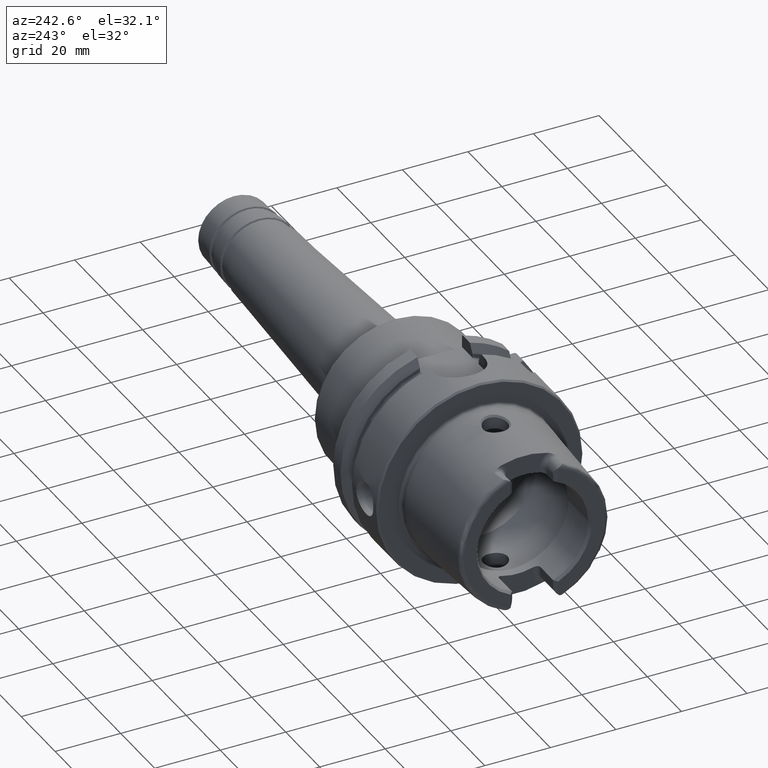
[diagram: clean part render]
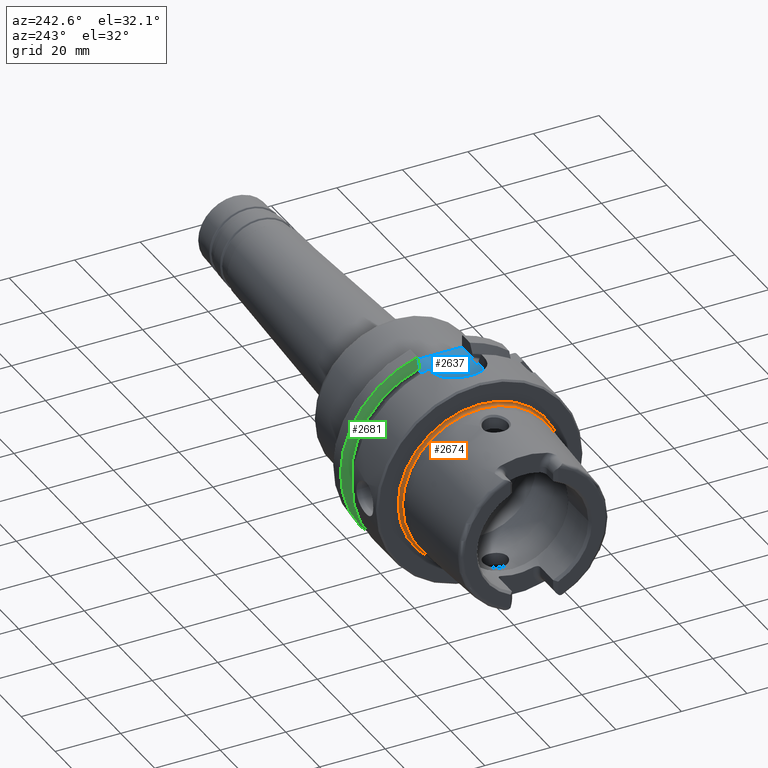
[diagram: same view with three faces highlighted in distinct colors, each labeled with its STEP entity id]
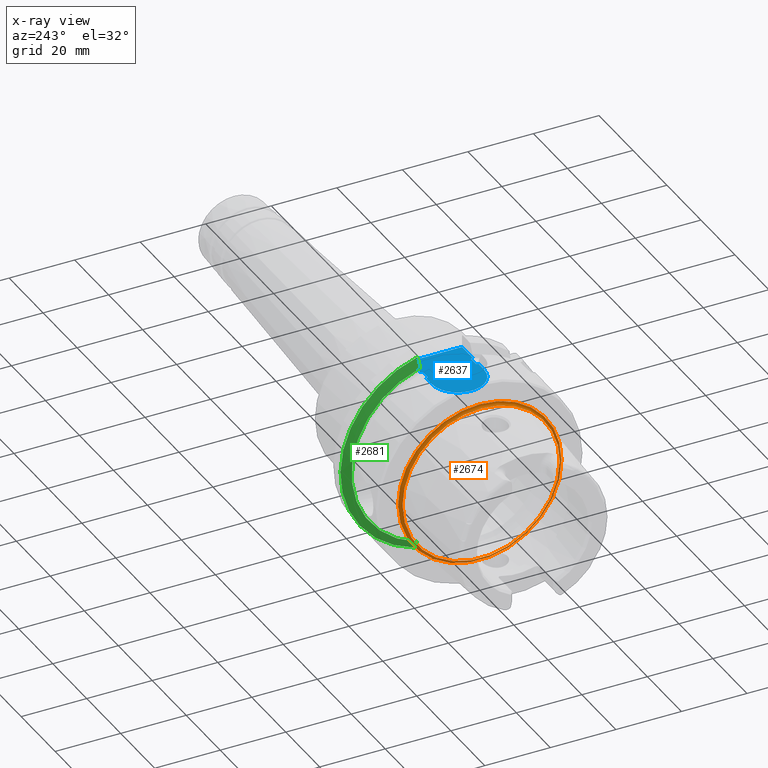
[diagram: x-ray of the same camera — body ghosted, the three highlighted faces saturated]
A machine part, auxiliary view with three faces highlighted in distinct colors.
The next image is the same camera in x-ray (body ghosted, the three faces saturated) — at least one of them is partly hidden behind the body in this view.
Their STEP definitions:

[orange] entity #2674 — the highlighted toroidal blend (fillet) surface has major radius 24.8204 mm and minor (blend) radius 0.8 mm.
#568=FACE_OUTER_BOUND('',#714,.T.);
#714=EDGE_LOOP('',(#2463,#2464,#2465,#2466,#2467,#2468,#2469,#2470));
#935=CIRCLE('',#3046,24.0204308617234);
#936=CIRCLE('',#3047,24.0204308617234);
#937=CIRCLE('',#3048,24.0204308617234);
#938=CIRCLE('',#3050,0.8);
#939=CIRCLE('',#3051,24.9317693424915);
#940=CIRCLE('',#3052,24.9317693424915);
#941=CIRCLE('',#3053,24.9317693424915);
#1235=VERTEX_POINT('',#5562);
#1236=VERTEX_POINT('',#5563);
#1237=VERTEX_POINT('',#5565);
#1238=VERTEX_POINT('',#5570);
#1239=VERTEX_POINT('',#5572);
#1240=VERTEX_POINT('',#5574);
#1649=EDGE_CURVE('',#1235,#1236,#935,.T.);
#1650=EDGE_CURVE('',#1237,#1235,#936,.T.);
#1652=EDGE_CURVE('',#1236,#1237,#937,.T.);
#1653=EDGE_CURVE('',#1236,#1238,#938,.T.);
#1654=EDGE_CURVE('',#1239,#1238,#939,.T.);
#1655=EDGE_CURVE('',#1240,#1239,#940,.T.);
#1656=EDGE_CURVE('',#1238,#1240,#941,.T.);
#2463=ORIENTED_EDGE('',*,*,#1649,.T.);
#2464=ORIENTED_EDGE('',*,*,#1653,.T.);
#2465=ORIENTED_EDGE('',*,*,#1654,.F.);
#2466=ORIENTED_EDGE('',*,*,#1655,.F.);
#2467=ORIENTED_EDGE('',*,*,#1656,.F.);
#2468=ORIENTED_EDGE('',*,*,#1653,.F.);
#2469=ORIENTED_EDGE('',*,*,#1652,.T.);
#2470=ORIENTED_EDGE('',*,*,#1650,.T.);
#2545=TOROIDAL_SURFACE('',#3049,24.8204308617234,0.8);
#2674=ADVANCED_FACE('',(#568),#2545,.F.);
#3046=AXIS2_PLACEMENT_3D('',#5564,#3872,#3873);
#3047=AXIS2_PLACEMENT_3D('',#5566,#3874,#3875);
#3048=AXIS2_PLACEMENT_3D('',#5568,#3877,#3878);
#3049=AXIS2_PLACEMENT_3D('',#5569,#3879,#3880);
#3050=AXIS2_PLACEMENT_3D('',#5571,#3881,#3882);
#3051=AXIS2_PLACEMENT_3D('',#5573,#3883,#3884);
#3052=AXIS2_PLACEMENT_3D('',#5575,#3885,#3886);
#3053=AXIS2_PLACEMENT_3D('',#5576,#3887,#3888);
#3872=DIRECTION('center_axis',(1.,0.,0.));
#3873=DIRECTION('ref_axis',(0.,0.,-1.));
#3874=DIRECTION('center_axis',(1.,0.,0.));
#3875=DIRECTION('ref_axis',(0.,0.,-1.));
#3877=DIRECTION('center_axis',(1.,0.,0.));
#3878=DIRECTION('ref_axis',(0.,0.,-1.));
#3879=DIRECTION('center_axis',(1.,0.,0.));
#3880=DIRECTION('ref_axis',(0.,0.,-1.));
#3881=DIRECTION('center_axis',(0.,-1.,-1.22464679914735E-16));
#3882=DIRECTION('ref_axis',(0.,-1.22464679914735E-16,1.));
#3883=DIRECTION('center_axis',(1.,0.,0.));
#3884=DIRECTION('ref_axis',(0.,0.,-1.));
#3885=DIRECTION('center_axis',(1.,0.,0.));
#3886=DIRECTION('ref_axis',(0.,0.,-1.));
#3887=DIRECTION('center_axis',(1.,0.,0.));
#3888=DIRECTION('ref_axis',(0.,0.,-1.));
#5562=CARTESIAN_POINT('',(-0.7,24.0204308617234,0.));
#5563=CARTESIAN_POINT('',(-0.699999999999998,-2.94165437689499E-15,24.0204308617234));
#5564=CARTESIAN_POINT('Origin',(-0.699999999999998,0.,0.));
#5565=CARTESIAN_POINT('',(-0.699999999999998,-24.0204308617234,-2.94165437689499E-15));
#5566=CARTESIAN_POINT('Origin',(-0.699999999999998,0.,0.));
#5568=CARTESIAN_POINT('Origin',(-0.699999999999998,0.,0.));
#5569=CARTESIAN_POINT('Origin',(-0.699999999999998,0.,0.));
#5570=CARTESIAN_POINT('',(0.0922144549932558,-3.05326115223623E-15,24.9317693424915));
#5571=CARTESIAN_POINT('Origin',(-0.699999999999998,-3.03962612082678E-15,
24.8204308617234));
#5572=CARTESIAN_POINT('',(0.0922144549932569,24.9317693424915,0.));
#5573=CARTESIAN_POINT('Origin',(0.0922144549932558,0.,0.));
#5574=CARTESIAN_POINT('',(0.0922144549932574,-24.9317693424915,-3.05326115223623E-15));
#5575=CARTESIAN_POINT('Origin',(0.0922144549932558,0.,0.));
#5576=CARTESIAN_POINT('Origin',(0.0922144549932558,0.,0.));

[blue] entity #2637 — the highlighted planar face has unit normal (0, 0, 1).
#75=B_SPLINE_CURVE_WITH_KNOTS('',3,(#5265,#5266,#5267,#5268,#5269,#5270,
#5271,#5272,#5273,#5274),.UNSPECIFIED.,.F.,.F.,(4,2,2,2,4),(0.328785692776271,
0.334026201575553,0.340879824321645,0.368343350403883,0.404857107979834),
 .UNSPECIFIED.);
#78=B_SPLINE_CURVE_WITH_KNOTS('',3,(#5296,#5297,#5298,#5299,#5300,#5301,
#5302,#5303,#5304,#5305),.UNSPECIFIED.,.F.,.F.,(4,2,2,2,4),(0.252714277572707,
0.289228035148658,0.316691561230897,0.323545183976988,0.32878569277627),
 .UNSPECIFIED.);
#82=B_SPLINE_CURVE_WITH_KNOTS('',3,(#5355,#5356,#5357,#5358,#5359,#5360,
#5361,#5362,#5363,#5364),.UNSPECIFIED.,.F.,.F.,(4,2,2,2,4),(0.32878569277627,
0.334026201575552,0.340879824321644,0.368343350403882,0.404857107979833),
 .UNSPECIFIED.);
#83=B_SPLINE_CURVE_WITH_KNOTS('',3,(#5367,#5368,#5369,#5370,#5371,#5372,
#5373,#5374,#5375,#5376),.UNSPECIFIED.,.F.,.F.,(4,2,2,2,4),(0.252714277572707,
0.289228035148658,0.316691561230897,0.323545183976989,0.328785692776271),
 .UNSPECIFIED.);
#162=PLANE('',#2963);
#180=LINE('',#3965,#297);
#262=LINE('',#5287,#379);
#263=LINE('',#5307,#380);
#264=LINE('',#5310,#381);
#269=LINE('',#5343,#386);
#270=LINE('',#5346,#387);
#271=LINE('',#5366,#388);
#297=VECTOR('',#3108,10.);
#379=VECTOR('',#3666,10.);
#380=VECTOR('',#3671,10.);
#381=VECTOR('',#3674,10.);
#386=VECTOR('',#3685,10.);
#387=VECTOR('',#3688,10.);
#388=VECTOR('',#3691,10.);
#531=FACE_OUTER_BOUND('',#674,.T.);
#674=EDGE_LOOP('',(#2259,#2260,#2261,#2262,#2263,#2264,#2265,#2266,#2267,
#2268,#2269,#2270));
#888=CIRCLE('',#2960,8.);
#966=VERTEX_POINT('',#3962);
#967=VERTEX_POINT('',#3964);
#1186=VERTEX_POINT('',#5262);
#1187=VERTEX_POINT('',#5264);
#1188=VERTEX_POINT('',#5285);
#1189=VERTEX_POINT('',#5289);
#1190=VERTEX_POINT('',#5309);
#1191=VERTEX_POINT('',#5313);
#1196=VERTEX_POINT('',#5336);
#1197=VERTEX_POINT('',#5345);
#1198=VERTEX_POINT('',#5354);
#1199=VERTEX_POINT('',#5365);
#1262=EDGE_CURVE('',#966,#967,#180,.T.);
#1559=EDGE_CURVE('',#1186,#1187,#75,.T.);
#1563=EDGE_CURVE('',#1188,#1186,#262,.T.);
#1565=EDGE_CURVE('',#1189,#1188,#78,.T.);
#1566=EDGE_CURVE('',#1189,#967,#263,.T.);
#1567=EDGE_CURVE('',#1190,#1187,#264,.T.);
#1569=EDGE_CURVE('',#1191,#1190,#888,.T.);
#1576=EDGE_CURVE('',#966,#1196,#269,.T.);
#1577=EDGE_CURVE('',#1197,#1191,#270,.T.);
#1579=EDGE_CURVE('',#1198,#1196,#82,.T.);
#1580=EDGE_CURVE('',#1199,#1198,#271,.T.);
#1581=EDGE_CURVE('',#1197,#1199,#83,.T.);
#2259=ORIENTED_EDGE('',*,*,#1559,.F.);
#2260=ORIENTED_EDGE('',*,*,#1563,.F.);
#2261=ORIENTED_EDGE('',*,*,#1565,.F.);
#2262=ORIENTED_EDGE('',*,*,#1566,.T.);
#2263=ORIENTED_EDGE('',*,*,#1262,.F.);
#2264=ORIENTED_EDGE('',*,*,#1576,.T.);
#2265=ORIENTED_EDGE('',*,*,#1579,.F.);
#2266=ORIENTED_EDGE('',*,*,#1580,.F.);
#2267=ORIENTED_EDGE('',*,*,#1581,.F.);
#2268=ORIENTED_EDGE('',*,*,#1577,.T.);
#2269=ORIENTED_EDGE('',*,*,#1569,.T.);
#2270=ORIENTED_EDGE('',*,*,#1567,.T.);
#2637=ADVANCED_FACE('',(#531),#162,.T.);
#2960=AXIS2_PLACEMENT_3D('',#5314,#3678,#3679);
#2963=AXIS2_PLACEMENT_3D('',#5353,#3689,#3690);
#3108=DIRECTION('',(0.,-1.,0.));
#3666=DIRECTION('',(-1.,0.,0.));
#3671=DIRECTION('',(1.,3.41607084500048E-16,0.));
#3674=DIRECTION('',(1.,3.41607084500048E-16,0.));
#3678=DIRECTION('center_axis',(0.,0.,1.));
#3679=DIRECTION('ref_axis',(0.,1.,0.));
#3685=DIRECTION('',(-1.,-2.56205313375036E-16,0.));
#3688=DIRECTION('',(-1.,-2.56205313375036E-16,0.));
#3689=DIRECTION('center_axis',(0.,0.,1.));
#3690=DIRECTION('ref_axis',(1.,0.,0.));
#3691=DIRECTION('',(1.,0.,0.));
#3962=CARTESIAN_POINT('',(26.,8.,26.5));
#3964=CARTESIAN_POINT('',(26.,-8.,26.5));
#3965=CARTESIAN_POINT('',(26.,5.55111512312578E-16,26.5));
#5262=CARTESIAN_POINT('',(16.625,-7.34846922834952,26.5));
#5264=CARTESIAN_POINT('',(16.2397987608563,-8.,26.5));
#5265=CARTESIAN_POINT('Ctrl Pts',(16.625,-7.34846922834952,26.5));
#5266=CARTESIAN_POINT('Ctrl Pts',(16.6075316373357,-7.34846922834952,26.5));
#5267=CARTESIAN_POINT('Ctrl Pts',(16.587038394856,-7.35287762173868,26.5));
#5268=CARTESIAN_POINT('Ctrl Pts',(16.5496994821687,-7.36807649661538,26.5));
#5269=CARTESIAN_POINT('Ctrl Pts',(16.5270295504762,-7.38349170057081,26.5));
#5270=CARTESIAN_POINT('Ctrl Pts',(16.4411490019356,-7.4590543697872,26.5));
#5271=CARTESIAN_POINT('Ctrl Pts',(16.3906456489289,-7.5566112023157,26.5));
#5272=CARTESIAN_POINT('Ctrl Pts',(16.3063113289614,-7.75248496685372,26.5));
#5273=CARTESIAN_POINT('Ctrl Pts',(16.2699372185845,-7.87398729043679,26.5));
#5274=CARTESIAN_POINT('Ctrl Pts',(16.2397987608563,-8.,26.5));
#5285=CARTESIAN_POINT('',(19.375,-7.34846922834952,26.5));
#5287=CARTESIAN_POINT('',(18.,-7.34846922834952,26.5));
#5289=CARTESIAN_POINT('',(19.7602012391436,-8.,26.5));
#5296=CARTESIAN_POINT('Ctrl Pts',(19.7602012391436,-8.,26.5));
#5297=CARTESIAN_POINT('Ctrl Pts',(19.7300627814155,-7.87398729043679,26.5));
#5298=CARTESIAN_POINT('Ctrl Pts',(19.6936886710386,-7.75248496685372,26.5));
#5299=CARTESIAN_POINT('Ctrl Pts',(19.6093543510711,-7.5566112023157,26.5));
#5300=CARTESIAN_POINT('Ctrl Pts',(19.5588509980644,-7.45905436978719,26.5));
#5301=CARTESIAN_POINT('Ctrl Pts',(19.4729704495238,-7.38349170057082,26.5));
#5302=CARTESIAN_POINT('Ctrl Pts',(19.4503005178313,-7.3680764966154,26.5));
#5303=CARTESIAN_POINT('Ctrl Pts',(19.412961605144,-7.35287762173869,26.5));
#5304=CARTESIAN_POINT('Ctrl Pts',(19.3924683626643,-7.34846922834952,26.5));
#5305=CARTESIAN_POINT('Ctrl Pts',(19.375,-7.34846922834952,26.5));
#5307=CARTESIAN_POINT('',(13.,-8.,26.5));
#5309=CARTESIAN_POINT('',(13.,-8.,26.5));
#5310=CARTESIAN_POINT('',(13.,-8.,26.5));
#5313=CARTESIAN_POINT('',(13.,8.,26.5));
#5314=CARTESIAN_POINT('Origin',(13.,0.,26.5));
#5336=CARTESIAN_POINT('',(19.7602012391436,8.,26.5));
#5343=CARTESIAN_POINT('',(26.,8.,26.5));
#5345=CARTESIAN_POINT('',(16.2397987608563,8.,26.5));
#5346=CARTESIAN_POINT('',(26.,8.,26.5));
#5353=CARTESIAN_POINT('Origin',(15.5,1.11022302462516E-15,26.5));
#5354=CARTESIAN_POINT('',(19.375,7.34846922834952,26.5));
#5355=CARTESIAN_POINT('Ctrl Pts',(19.375,7.34846922834952,26.5));
#5356=CARTESIAN_POINT('Ctrl Pts',(19.3924683626643,7.34846922834952,26.5));
#5357=CARTESIAN_POINT('Ctrl Pts',(19.412961605144,7.35287762173869,26.5));
#5358=CARTESIAN_POINT('Ctrl Pts',(19.4503005178313,7.3680764966154,26.5));
#5359=CARTESIAN_POINT('Ctrl Pts',(19.4729704495238,7.38349170057082,26.5));
#5360=CARTESIAN_POINT('Ctrl Pts',(19.5588509980644,7.45905436978719,26.5));
#5361=CARTESIAN_POINT('Ctrl Pts',(19.6093543510711,7.5566112023157,26.5));
#5362=CARTESIAN_POINT('Ctrl Pts',(19.6936886710386,7.75248496685372,26.5));
#5363=CARTESIAN_POINT('Ctrl Pts',(19.7300627814155,7.87398729043679,26.5));
#5364=CARTESIAN_POINT('Ctrl Pts',(19.7602012391436,8.,26.5));
#5365=CARTESIAN_POINT('',(16.625,7.34846922834952,26.5));
#5366=CARTESIAN_POINT('',(18.,7.34846922834952,26.5));
#5367=CARTESIAN_POINT('Ctrl Pts',(16.2397987608563,8.,26.5));
#5368=CARTESIAN_POINT('Ctrl Pts',(16.2699372185845,7.87398729043679,26.5));
#5369=CARTESIAN_POINT('Ctrl Pts',(16.3063113289614,7.75248496685372,26.5));
#5370=CARTESIAN_POINT('Ctrl Pts',(16.3906456489289,7.5566112023157,26.5));
#5371=CARTESIAN_POINT('Ctrl Pts',(16.4411490019356,7.4590543697872,26.5));
#5372=CARTESIAN_POINT('Ctrl Pts',(16.5270295504762,7.38349170057081,26.5));
#5373=CARTESIAN_POINT('Ctrl Pts',(16.5496994821687,7.36807649661538,26.5));
#5374=CARTESIAN_POINT('Ctrl Pts',(16.587038394856,7.35287762173868,26.5));
#5375=CARTESIAN_POINT('Ctrl Pts',(16.6075316373357,7.34846922834952,26.5));
#5376=CARTESIAN_POINT('Ctrl Pts',(16.625,7.34846922834952,26.5));

[green] entity #2681 — the highlighted conical surface has half-angle 60 deg.
#23=(
BOUNDED_CURVE()
B_SPLINE_CURVE(2,(#5065,#5066,#5067),.UNSPECIFIED.,.F.,.F.)
B_SPLINE_CURVE_WITH_KNOTS((3,3),(0.,0.311314369989023),.UNSPECIFIED.)
CURVE()
GEOMETRIC_REPRESENTATION_ITEM()
RATIONAL_B_SPLINE_CURVE((1.,1.00102053193101,1.))
REPRESENTATION_ITEM('')
);
#28=(
BOUNDED_CURVE()
B_SPLINE_CURVE(2,(#5331,#5332,#5333),.UNSPECIFIED.,.F.,.F.)
B_SPLINE_CURVE_WITH_KNOTS((3,3),(0.,0.308905667770379),.UNSPECIFIED.)
CURVE()
GEOMETRIC_REPRESENTATION_ITEM()
RATIONAL_B_SPLINE_CURVE((1.,1.00099999354955,1.))
REPRESENTATION_ITEM('')
);
#120=CONICAL_SURFACE('',#3067,30.1987976320958,1.0471975511966);
#575=FACE_OUTER_BOUND('',#722,.T.);
#722=EDGE_LOOP('',(#2502,#2503,#2504,#2505));
#948=CIRCLE('',#3066,28.8975952641916);
#949=CIRCLE('',#3068,31.5);
#1155=VERTEX_POINT('',#5062);
#1156=VERTEX_POINT('',#5064);
#1193=VERTEX_POINT('',#5328);
#1194=VERTEX_POINT('',#5330);
#1511=EDGE_CURVE('',#1156,#1155,#23,.T.);
#1573=EDGE_CURVE('',#1194,#1193,#28,.T.);
#1665=EDGE_CURVE('',#1155,#1194,#948,.T.);
#1666=EDGE_CURVE('',#1156,#1193,#949,.T.);
#2502=ORIENTED_EDGE('',*,*,#1511,.T.);
#2503=ORIENTED_EDGE('',*,*,#1665,.T.);
#2504=ORIENTED_EDGE('',*,*,#1573,.T.);
#2505=ORIENTED_EDGE('',*,*,#1666,.F.);
#2681=ADVANCED_FACE('',(#575),#120,.T.);
#3066=AXIS2_PLACEMENT_3D('',#5595,#3915,#3916);
#3067=AXIS2_PLACEMENT_3D('',#5596,#3917,#3918);
#3068=AXIS2_PLACEMENT_3D('',#5597,#3919,#3920);
#3915=DIRECTION('center_axis',(1.,0.,0.));
#3916=DIRECTION('ref_axis',(0.,0.,-1.));
#3917=DIRECTION('center_axis',(1.,0.,0.));
#3918=DIRECTION('ref_axis',(0.,1.,0.));
#3919=DIRECTION('center_axis',(1.,0.,0.));
#3920=DIRECTION('ref_axis',(0.,0.,-1.));
#5062=CARTESIAN_POINT('',(19.875,9.,-27.4603534582684));
#5064=CARTESIAN_POINT('',(21.3774990747593,9.,-30.1869176962472));
#5065=CARTESIAN_POINT('Ctrl Pts',(21.3774990747593,9.,-30.1869176962472));
#5066=CARTESIAN_POINT('Ctrl Pts',(20.5907174110262,9.,-28.7648946319019));
#5067=CARTESIAN_POINT('Ctrl Pts',(19.875,9.,-27.4603534582684));
#5328=CARTESIAN_POINT('',(21.3774990747593,8.,30.4671954731642));
#5330=CARTESIAN_POINT('',(19.875,8.,27.7681654426977));
#5331=CARTESIAN_POINT('Ctrl Pts',(19.875,8.,27.7681654426977));
#5332=CARTESIAN_POINT('Ctrl Pts',(20.5914314297923,8.,29.0595327079863));
#5333=CARTESIAN_POINT('Ctrl Pts',(21.3774990747593,8.,30.4671954731642));
#5595=CARTESIAN_POINT('Origin',(19.875,0.,0.));
#5596=CARTESIAN_POINT('Origin',(20.6262495373797,0.,0.));
#5597=CARTESIAN_POINT('Origin',(21.3774990747593,0.,0.));